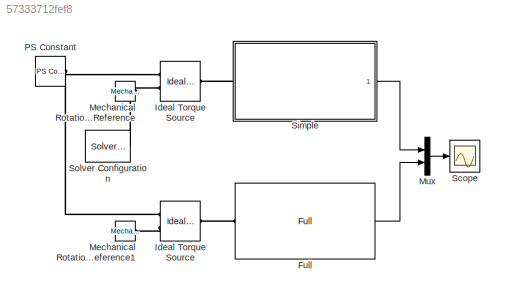
MODEL slx_57333712fef8
KIND model
CONFIG AbsTol = 1e-3
CONFIG EnableMultiTasking = on
CONFIG FixedStep = auto
CONFIG MaxStep = auto
CONFIG MinStep = auto
CONFIG RelTol = 1e-4
CONFIG SampleTimeConstraint = Unconstrained
CONFIG Solver = ode15s
CONFIG SolverName = ode15s
CONFIG StartTime = 0.0
CONFIG StopTime = 400
BLOCK [Reference] Full  REF=HEV_Vehicle_Dynamics_Lib/Full
  Ports = [0, 1, 0, 0, 0, 1]
  SourceBlock = HEV_Vehicle_Dynamics_Lib/Full
BLOCK [Reference] Ideal Torque Source  REF=fl_lib/Mechanical/Mechanical Sources/Ideal Torque Source
  Ports = [0, 0, 0, 0, 0, 1, 2]
  SourceBlock = fl_lib/Mechanical/Mechanical Sources/Ideal Torque Source
  SourceProductBaseCode = SS
  SourceType = Ideal Torque Source
BLOCK [Reference] Ideal Torque Source   REF=fl_lib/Mechanical/Mechanical Sources/Ideal Torque Source
  Ports = [0, 0, 0, 0, 0, 1, 2]
  SourceBlock = fl_lib/Mechanical/Mechanical Sources/Ideal Torque Source
  SourceProductBaseCode = SS
  SourceType = Ideal Torque Source
BLOCK [Reference] Mechanical Rotational Reference  REF=fl_lib/Mechanical/Rotational Elements/Mechanical
Rotational Reference
  Ports = [0, 0, 0, 0, 0, 1]
  SourceBlock = fl_lib/Mechanical/Rotational Elements/Mechanical\nRotational Reference
  SourceProductBaseCode = SS
  SourceType = Mechanical\nRotational Reference
BLOCK [Reference] Mechanical Rotational Reference1  REF=fl_lib/Mechanical/Rotational Elements/Mechanical
Rotational Reference
  Ports = [0, 0, 0, 0, 0, 1]
  SourceBlock = fl_lib/Mechanical/Rotational Elements/Mechanical\nRotational Reference
  SourceProductBaseCode = SS
  SourceType = Mechanical\nRotational Reference
BLOCK [Mux] Mux
  DisplayOption = bar
  Inputs = 2
  Ports = [2, 1]
BLOCK [Reference] PS Constant  REF=fl_lib/Physical Signals/Sources/PS Constant
  Ports = [0, 0, 0, 0, 0, 0, 1]
  SourceBlock = fl_lib/Physical Signals/Sources/PS Constant
  SourceProductBaseCode = SS
  SourceType = PS Constant
BLOCK [Scope] Scope
  Floating = off
  NumInputPorts = 1
  Ports = [1]
  ScopeSpecificationString = Simulink.scopes.TimeScopeBlockCfg('CurrentConfiguration', extmgr.ConfigurationSet(extmgr.Configuration('Core','General UI',true),extmgr.Configuration('Core','Source UI',true),extmgr.Configuration('Sources','WiredSimulink',true,'DataLoggingSaveFormat','StructureWithTime','DataLoggingLimitDataPoints',true,'DataLoggingDecimation','1'),extmgr.Configuration('Visuals','Time Domain',true,'SerializedDispl...<+1662ch>
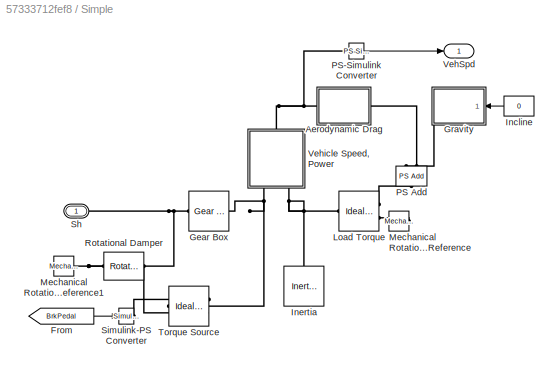
BLOCK [SubSystem] Simple
  AncestorBlock = HEV_Vehicle_Dynamics_Lib/Simple
  Ports = [0, 1, 0, 0, 0, 1]
  RequestExecContextInheritance = off
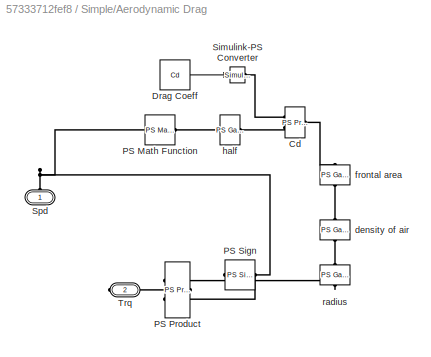
BLOCK [SubSystem] Simple/Aerodynamic Drag
  Ports = [0, 0, 0, 0, 0, 1, 1]
  RequestExecContextInheritance = off
BLOCK [Reference] Simple/Aerodynamic Drag/Cd  REF=fl_lib/Physical Signals/Functions/PS Product
  Ports = [0, 0, 0, 0, 0, 2, 1]
  SourceBlock = fl_lib/Physical Signals/Functions/PS Product
  SourceProductBaseCode = SS
  SourceType = PS Product
BLOCK [Constant] Simple/Aerodynamic Drag/Drag Coeff
  Value = Cd
BLOCK [Reference] Simple/Aerodynamic Drag/PS Math Function  REF=fl_lib/Physical Signals/Functions/PS Math Function
  Ports = [0, 0, 0, 0, 0, 1, 1]
  SourceBlock = fl_lib/Physical Signals/Functions/PS Math Function
  SourceProductBaseCode = SS
  SourceType = PS Math Function
BLOCK [Reference] Simple/Aerodynamic Drag/PS Product  REF=fl_lib/Physical Signals/Functions/PS Product
  NameLocation = top
  Ports = [0, 0, 0, 0, 0, 2, 1]
  SourceBlock = fl_lib/Physical Signals/Functions/PS Product
  SourceProductBaseCode = SS
  SourceType = PS Product
BLOCK [Reference] Simple/Aerodynamic Drag/PS Sign  REF=fl_lib/Physical Signals/Nonlinear Operators/PS Sign
  NameLocation = top
  Ports = [0, 0, 0, 0, 0, 1, 1]
  SourceBlock = fl_lib/Physical Signals/Nonlinear Operators/PS Sign
  SourceProductBaseCode = SS
  SourceType = PS Sign
BLOCK [Reference] Simple/Aerodynamic Drag/Simulink-PS Converter  REF=nesl_utility/Simulink-PS
Converter
  Ports = [1, 0, 0, 0, 0, 0, 1]
  SourceBlock = nesl_utility/Simulink-PS\nConverter
  SourceProductBaseCode = SS
  SourceType = Simulink-PS\nConverter
BLOCK [PMIOPort] Simple/Aerodynamic Drag/Spd
  NameLocation = right
  Side = Left
BLOCK [PMIOPort] Simple/Aerodynamic Drag/Trq
  Port = 2
  Side = Right
BLOCK [Reference] Simple/Aerodynamic Drag/density of air  REF=fl_lib/Physical Signals/Functions/PS Gain
  NameLocation = right
  Ports = [0, 0, 0, 0, 0, 1, 1]
  SourceBlock = fl_lib/Physical Signals/Functions/PS Gain
  SourceProductBaseCode = SS
  SourceType = PS Gain
BLOCK [Reference] Simple/Aerodynamic Drag/frontal area  REF=fl_lib/Physical Signals/Functions/PS Gain
  NameLocation = right
  Ports = [0, 0, 0, 0, 0, 1, 1]
  SourceBlock = fl_lib/Physical Signals/Functions/PS Gain
  SourceProductBaseCode = SS
  SourceType = PS Gain
BLOCK [Reference] Simple/Aerodynamic Drag/half  REF=fl_lib/Physical Signals/Functions/PS Gain
  Ports = [0, 0, 0, 0, 0, 1, 1]
  SourceBlock = fl_lib/Physical Signals/Functions/PS Gain
  SourceProductBaseCode = SS
  SourceType = PS Gain
BLOCK [Reference] Simple/Aerodynamic Drag/radius  REF=fl_lib/Physical Signals/Functions/PS Gain
  NameLocation = left
  Ports = [0, 0, 0, 0, 0, 1, 1]
  SourceBlock = fl_lib/Physical Signals/Functions/PS Gain
  SourceProductBaseCode = SS
  SourceType = PS Gain
BLOCK [From] Simple/From
  GotoTag = BrkPedal
BLOCK [Reference] Simple/Gear Box  REF=fl_lib/Mechanical/Mechanisms/Gear Box
  Ports = [0, 0, 0, 0, 0, 1, 1]
  SourceBlock = fl_lib/Mechanical/Mechanisms/Gear Box
  SourceProductBaseCode = SS
  SourceType = Gear Box
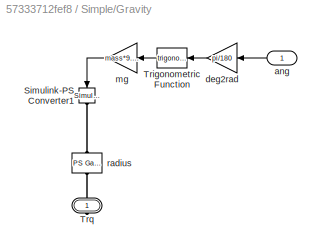
BLOCK [SubSystem] Simple/Gravity
  Ports = [1, 0, 0, 0, 0, 0, 1]
  RequestExecContextInheritance = off
BLOCK [Reference] Simple/Gravity/Simulink-PS Converter1  REF=nesl_utility/Simulink-PS
Converter
  NameLocation = right
  Ports = [1, 0, 0, 0, 0, 0, 1]
  SourceBlock = nesl_utility/Simulink-PS\nConverter
  SourceProductBaseCode = SS
  SourceType = Simulink-PS\nConverter
BLOCK [Trigonometry] Simple/Gravity/Trigonometric Function
  Ports = [1, 1]
BLOCK [PMIOPort] Simple/Gravity/Trq
  NameLocation = right
  Side = Right
BLOCK [Inport] Simple/Gravity/ang
BLOCK [Gain] Simple/Gravity/deg2rad
  Gain = pi/180
BLOCK [Gain] Simple/Gravity/mg
  Gain = mass*9.81
BLOCK [Reference] Simple/Gravity/radius  REF=fl_lib/Physical Signals/Functions/PS Gain
  NameLocation = right
  Ports = [0, 0, 0, 0, 0, 1, 1]
  SourceBlock = fl_lib/Physical Signals/Functions/PS Gain
  SourceProductBaseCode = SS
  SourceType = PS Gain
BLOCK [Constant] Simple/Incline
  Value = 0
BLOCK [Reference] Simple/Inertia  REF=fl_lib/Mechanical/Rotational Elements/Inertia
  NameLocation = right
  Ports = [0, 0, 0, 0, 0, 1]
  SourceBlock = fl_lib/Mechanical/Rotational Elements/Inertia
  SourceProductBaseCode = SS
  SourceType = Inertia
BLOCK [Reference] Simple/Load Torque  REF=fl_lib/Mechanical/Mechanical Sources/Ideal Torque Source
  Ports = [0, 0, 0, 0, 0, 1, 2]
  SourceBlock = fl_lib/Mechanical/Mechanical Sources/Ideal Torque Source
  SourceProductBaseCode = SS
  SourceType = Ideal Torque Source
BLOCK [Reference] Simple/Mechanical Rotational Reference  REF=fl_lib/Mechanical/Rotational Elements/Mechanical
Rotational Reference
  NameLocation = top
  Ports = [0, 0, 0, 0, 0, 1]
  SourceBlock = fl_lib/Mechanical/Rotational Elements/Mechanical\nRotational Reference
  SourceProductBaseCode = SS
  SourceType = Mechanical\nRotational Reference
BLOCK [Reference] Simple/Mechanical Rotational Reference1  REF=fl_lib/Mechanical/Rotational Elements/Mechanical
Rotational Reference
  NameLocation = top
  Ports = [0, 0, 0, 0, 0, 1]
  SourceBlock = fl_lib/Mechanical/Rotational Elements/Mechanical\nRotational Reference
  SourceProductBaseCode = SS
  SourceType = Mechanical\nRotational Reference
BLOCK [Reference] Simple/PS Add  REF=fl_lib/Physical Signals/Functions/PS Add
  NameLocation = right
  Ports = [0, 0, 0, 0, 0, 2, 1]
  SourceBlock = fl_lib/Physical Signals/Functions/PS Add
  SourceProductBaseCode = SS
  SourceType = PS Add
BLOCK [Reference] Simple/PS-Simulink Converter  REF=nesl_utility/PS-Simulink
Converter
  Ports = [0, 1, 0, 0, 0, 1]
  SourceBlock = nesl_utility/PS-Simulink\nConverter
  SourceProductBaseCode = SS
  SourceType = PS-Simulink\nConverter
BLOCK [Reference] Simple/Rotational Damper  REF=fl_lib/Mechanical/Rotational Elements/Rotational Damper
  Ports = [0, 0, 0, 0, 0, 1, 1]
  SourceBlock = fl_lib/Mechanical/Rotational Elements/Rotational Damper
  SourceProductBaseCode = SS
  SourceType = Rotational Damper
BLOCK [PMIOPort] Simple/Sh
  Side = Left
BLOCK [Reference] Simple/Simulink-PS Converter  REF=nesl_utility/Simulink-PS
Converter
  Ports = [1, 0, 0, 0, 0, 0, 1]
  SourceBlock = nesl_utility/Simulink-PS\nConverter
  SourceProductBaseCode = SS
  SourceType = Simulink-PS\nConverter
BLOCK [Reference] Simple/Torque Source  REF=fl_lib/Mechanical/Mechanical Sources/Ideal Torque Source
  Ports = [0, 0, 0, 0, 0, 1, 2]
  SourceBlock = fl_lib/Mechanical/Mechanical Sources/Ideal Torque Source
  SourceProductBaseCode = SS
  SourceType = Ideal Torque Source
BLOCK [Outport] Simple/VehSpd
  VectorParamsAs1DForOutWhenUnconnected = off
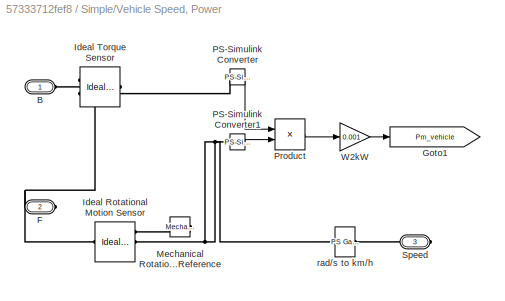
BLOCK [SubSystem] Simple/Vehicle Speed, Power
  NameLocation = left
  Ports = [0, 0, 0, 0, 0, 2, 1]
  RequestExecContextInheritance = off
BLOCK [PMIOPort] Simple/Vehicle Speed, Power/B
  NameLocation = top
  Side = Left
BLOCK [PMIOPort] Simple/Vehicle Speed, Power/F
  NameLocation = top
  Port = 2
  Side = Left
BLOCK [Goto] Simple/Vehicle Speed, Power/Goto1
  Commented = on
  GotoTag = Pm_vehicle
  TagVisibility = global
BLOCK [Reference] Simple/Vehicle Speed, Power/Ideal Rotational Motion Sensor  REF=fl_lib/Mechanical/Mechanical Sensors/Ideal Rotational
Motion Sensor
  Ports = [0, 0, 0, 0, 0, 1, 3]
  SourceBlock = fl_lib/Mechanical/Mechanical Sensors/Ideal Rotational\nMotion Sensor
  SourceProductBaseCode = SS
  SourceType = Ideal Rotational\nMotion Sensor
BLOCK [Reference] Simple/Vehicle Speed, Power/Ideal Torque Sensor  REF=fl_lib/Mechanical/Mechanical Sensors/Ideal Torque Sensor
  Ports = [0, 0, 0, 0, 0, 1, 2]
  SourceBlock = fl_lib/Mechanical/Mechanical Sensors/Ideal Torque Sensor
  SourceProductBaseCode = SS
  SourceType = Ideal Torque Sensor
BLOCK [Reference] Simple/Vehicle Speed, Power/Mechanical Rotational Reference  REF=fl_lib/Mechanical/Rotational Elements/Mechanical
Rotational Reference
  NameLocation = top
  Ports = [0, 0, 0, 0, 0, 1]
  SourceBlock = fl_lib/Mechanical/Rotational Elements/Mechanical\nRotational Reference
  SourceProductBaseCode = SS
  SourceType = Mechanical\nRotational Reference
BLOCK [Reference] Simple/Vehicle Speed, Power/PS-Simulink Converter  REF=nesl_utility/PS-Simulink
Converter
  Ports = [0, 1, 0, 0, 0, 1]
  SourceBlock = nesl_utility/PS-Simulink\nConverter
  SourceProductBaseCode = SS
  SourceType = PS-Simulink\nConverter
BLOCK [Reference] Simple/Vehicle Speed, Power/PS-Simulink Converter1  REF=nesl_utility/PS-Simulink
Converter
  Ports = [0, 1, 0, 0, 0, 1]
  SourceBlock = nesl_utility/PS-Simulink\nConverter
  SourceProductBaseCode = SS
  SourceType = PS-Simulink\nConverter
BLOCK [Product] Simple/Vehicle Speed, Power/Product
  Ports = [2, 1]
  RndMeth = Zero
BLOCK [PMIOPort] Simple/Vehicle Speed, Power/Speed
  Port = 3
  Side = Right
BLOCK [Gain] Simple/Vehicle Speed, Power/W2kW
  Gain = 0.001
BLOCK [Reference] Simple/Vehicle Speed, Power/rad//s to km//h  REF=fl_lib/Physical Signals/Functions/PS Gain
  Ports = [0, 0, 0, 0, 0, 1, 1]
  SourceBlock = fl_lib/Physical Signals/Functions/PS Gain
  SourceProductBaseCode = SS
  SourceType = PS Gain
BLOCK [Reference] Solver Configuration  REF=nesl_utility/Solver
Configuration
  Ports = [0, 0, 0, 0, 0, 0, 1]
  SourceBlock = nesl_utility/Solver\nConfiguration
  SourceProductBaseCode = SS
  SourceType = Solver\nConfiguration
LINE Full:1 -> Mux:2
LINE Mux:1 -> Scope:1
LINE Simple:1 -> Mux:1
PLINE Full:LConn1 -- Ideal Torque Source :LConn1
PNET net1: Ideal Torque Source :RConn1 -- Ideal Torque Source:RConn1 -- PS Constant:RConn1
PLINE Ideal Torque Source :RConn2 -- Mechanical Rotational Reference1:LConn1
PLINE Ideal Torque Source:LConn1 -- Simple:LConn1
PNET net2: Ideal Torque Source:RConn2 -- Mechanical Rotational Reference:LConn1 -- Solver Configuration:RConn1
note: PNET lines group multi-terminal physical nets as a canonical sorted terminal list (undirected conserving connections); 2-terminal nets keep the pairwise PLINE form
